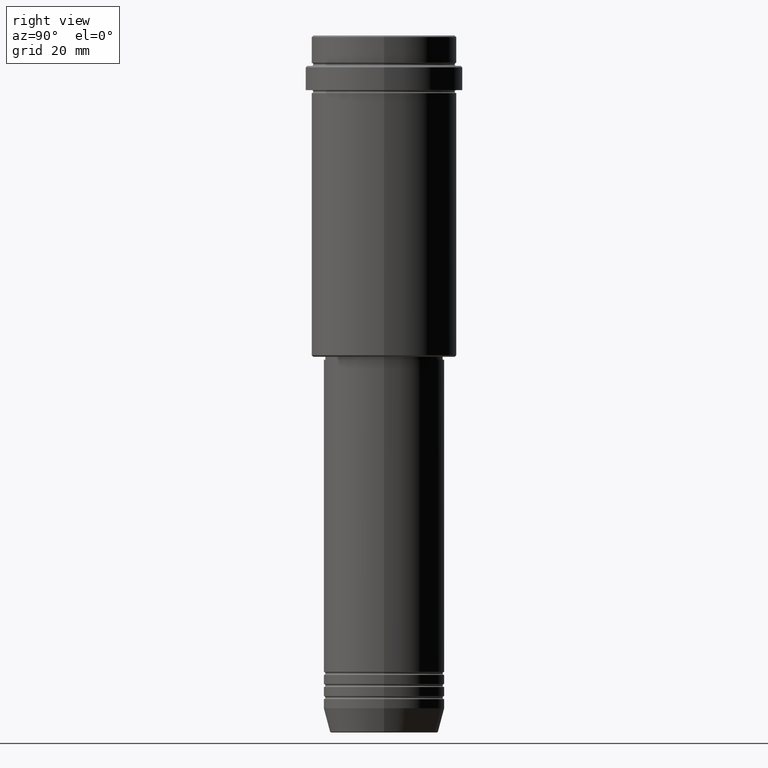
[diagram: clean part render]
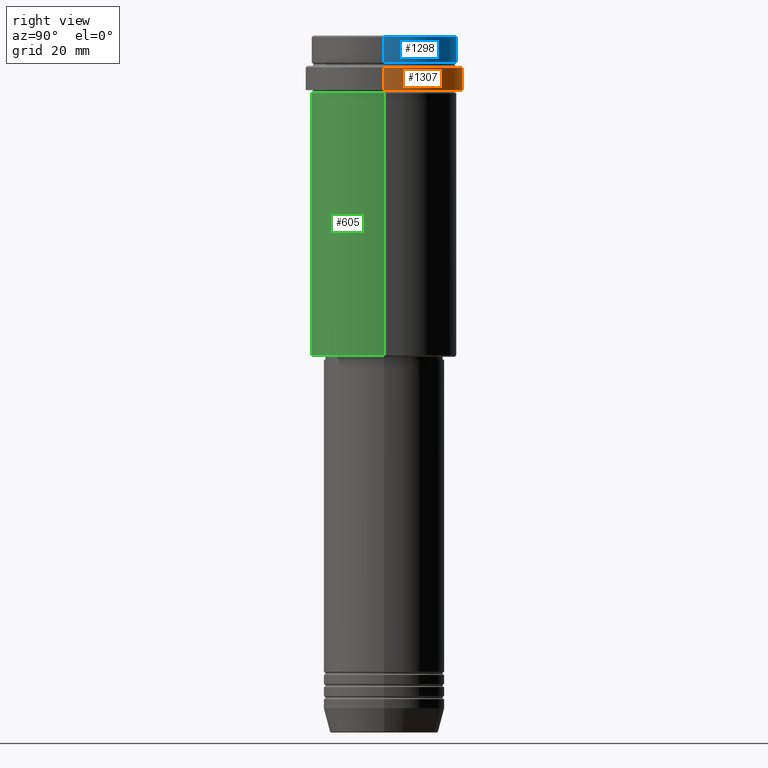
[diagram: same view with three faces highlighted in distinct colors, each labeled with its STEP entity id]
A machine part, right view with three faces highlighted in distinct colors.
Their STEP definitions:

[orange] entity #1307 — the highlighted cylindrical surface (partial cylindrical patch) has radius 26 mm, axis along (-0, -0, 1).
#30 = LINE ( 'NONE', #1130, #524 ) ;
#57 = ORIENTED_EDGE ( 'NONE', *, *, #1081, .T. ) ;
#73 = EDGE_CURVE ( 'NONE', #581, #1011, #30, .T. ) ;
#88 = EDGE_CURVE ( 'NONE', #1268, #1011, #802, .T. ) ;
#89 = DIRECTION ( 'NONE',  ( -0.000000000000000000, -0.000000000000000000, 1.000000000000000000 ) ) ;
#115 = CARTESIAN_POINT ( 'NONE',  ( -25.99999999999997158, 3.184081677783114641E-15, -10.49999999999999467 ) ) ;
#120 = DIRECTION ( 'NONE',  ( -0.000000000000000000, -0.000000000000000000, 1.000000000000000000 ) ) ;
#121 = AXIS2_PLACEMENT_3D ( 'NONE', #1397, #89, #933 ) ;
#139 = CARTESIAN_POINT ( 'NONE',  ( 0.000000000000000000, 0.000000000000000000, -10.49999999999999467 ) ) ;
#141 = EDGE_CURVE ( 'NONE', #581, #301, #1273, .T. ) ;
#203 = ORIENTED_EDGE ( 'NONE', *, *, #73, .F. ) ;
#212 = VECTOR ( 'NONE', #679, 1000.000000000000000 ) ;
#254 = DIRECTION ( 'NONE',  ( -0.000000000000000000, -0.000000000000000000, 1.000000000000000000 ) ) ;
#265 = DIRECTION ( 'NONE',  ( 1.000000000000000000, 0.000000000000000000, 0.000000000000000000 ) ) ;
#301 = VERTEX_POINT ( 'NONE', #863 ) ;
#337 = CARTESIAN_POINT ( 'NONE',  ( 0.000000000000000000, 0.000000000000000000, 0.000000000000000000 ) ) ;
#472 = ORIENTED_EDGE ( 'NONE', *, *, #141, .T. ) ;
#524 = VECTOR ( 'NONE', #254, 1000.000000000000000 ) ;
#577 = DIRECTION ( 'NONE',  ( 0.000000000000000000, 0.000000000000000000, -1.000000000000000000 ) ) ;
#581 = VERTEX_POINT ( 'NONE', #1219 ) ;
#679 = DIRECTION ( 'NONE',  ( -0.000000000000000000, -0.000000000000000000, 1.000000000000000000 ) ) ;
#802 = CIRCLE ( 'NONE', #1134, 25.99999999999997158 ) ;
#863 = CARTESIAN_POINT ( 'NONE',  ( -25.99999999999997158, 3.184081677783114641E-15, -18.00000000000000355 ) ) ;
#875 = DIRECTION ( 'NONE',  ( 1.000000000000000000, 0.000000000000000000, 0.000000000000000000 ) ) ;
#894 = LINE ( 'NONE', #1339, #212 ) ;
#933 = DIRECTION ( 'NONE',  ( 1.000000000000000000, 0.000000000000000000, 0.000000000000000000 ) ) ;
#978 = CYLINDRICAL_SURFACE ( 'NONE', #1413, 25.99999999999997158 ) ;
#985 = FACE_OUTER_BOUND ( 'NONE', #1321, .T. ) ;
#1011 = VERTEX_POINT ( 'NONE', #1367 ) ;
#1081 = EDGE_CURVE ( 'NONE', #301, #1268, #894, .T. ) ;
#1130 = CARTESIAN_POINT ( 'NONE',  ( 25.99999999999997158, 0.000000000000000000, 0.000000000000000000 ) ) ;
#1134 = AXIS2_PLACEMENT_3D ( 'NONE', #139, #577, #265 ) ;
#1219 = CARTESIAN_POINT ( 'NONE',  ( 25.99999999999997158, 0.000000000000000000, -18.00000000000000355 ) ) ;
#1222 = ORIENTED_EDGE ( 'NONE', *, *, #88, .T. ) ;
#1268 = VERTEX_POINT ( 'NONE', #115 ) ;
#1273 = CIRCLE ( 'NONE', #121, 25.99999999999997158 ) ;
#1307 = ADVANCED_FACE ( 'NONE', ( #985 ), #978, .T. ) ;
#1321 = EDGE_LOOP ( 'NONE', ( #472, #57, #1222, #203 ) ) ;
#1339 = CARTESIAN_POINT ( 'NONE',  ( -25.99999999999997158, 3.184081677783114641E-15, 0.000000000000000000 ) ) ;
#1367 = CARTESIAN_POINT ( 'NONE',  ( 25.99999999999997158, 0.000000000000000000, -10.49999999999999467 ) ) ;
#1397 = CARTESIAN_POINT ( 'NONE',  ( 0.000000000000000000, 0.000000000000000000, -18.00000000000000355 ) ) ;
#1413 = AXIS2_PLACEMENT_3D ( 'NONE', #337, #120, #875 ) ;

[blue] entity #1298 — the highlighted cylindrical surface (partial cylindrical patch) has radius 24 mm, axis along (-0, -0, 1).
#1 = CARTESIAN_POINT ( 'NONE',  ( -23.99999999999998579, 2.939152317953646317E-15, -0.4999999999999657496 ) ) ;
#10 = VERTEX_POINT ( 'NONE', #475 ) ;
#16 = LINE ( 'NONE', #660, #1393 ) ;
#60 = CARTESIAN_POINT ( 'NONE',  ( 23.99999999999997158, 0.000000000000000000, -8.999999999999998224 ) ) ;
#78 = VERTEX_POINT ( 'NONE', #60 ) ;
#80 = VERTEX_POINT ( 'NONE', #482 ) ;
#92 = EDGE_LOOP ( 'NONE', ( #1241, #224, #412, #477 ) ) ;
#98 = DIRECTION ( 'NONE',  ( -0.000000000000000000, -0.000000000000000000, 1.000000000000000000 ) ) ;
#107 = CYLINDRICAL_SURFACE ( 'NONE', #1376, 23.99999999999998579 ) ;
#114 = DIRECTION ( 'NONE',  ( -0.000000000000000000, -0.000000000000000000, 1.000000000000000000 ) ) ;
#158 = CARTESIAN_POINT ( 'NONE',  ( 0.000000000000000000, 0.000000000000000000, -0.4999999999999657496 ) ) ;
#217 = CARTESIAN_POINT ( 'NONE',  ( -23.99999999999998579, 2.939152317953646317E-15, 0.000000000000000000 ) ) ;
#224 = ORIENTED_EDGE ( 'NONE', *, *, #1144, .T. ) ;
#257 = DIRECTION ( 'NONE',  ( 1.000000000000000000, 0.000000000000000000, 0.000000000000000000 ) ) ;
#298 = AXIS2_PLACEMENT_3D ( 'NONE', #158, #800, #257 ) ;
#328 = VECTOR ( 'NONE', #114, 1000.000000000000000 ) ;
#412 = ORIENTED_EDGE ( 'NONE', *, *, #730, .T. ) ;
#434 = FACE_OUTER_BOUND ( 'NONE', #92, .T. ) ;
#475 = CARTESIAN_POINT ( 'NONE',  ( 23.99999999999998579, 0.000000000000000000, -0.4999999999999657496 ) ) ;
#477 = ORIENTED_EDGE ( 'NONE', *, *, #1274, .F. ) ;
#482 = CARTESIAN_POINT ( 'NONE',  ( -23.99999999999997158, 2.939152317953645133E-15, -8.999999999999998224 ) ) ;
#536 = DIRECTION ( 'NONE',  ( -0.000000000000000000, -0.000000000000000000, 1.000000000000000000 ) ) ;
#625 = DIRECTION ( 'NONE',  ( -0.000000000000000000, -0.000000000000000000, 1.000000000000000000 ) ) ;
#660 = CARTESIAN_POINT ( 'NONE',  ( 23.99999999999998579, 0.000000000000000000, 0.000000000000000000 ) ) ;
#716 = CIRCLE ( 'NONE', #298, 23.99999999999998579 ) ;
#730 = EDGE_CURVE ( 'NONE', #1327, #10, #716, .T. ) ;
#783 = AXIS2_PLACEMENT_3D ( 'NONE', #1052, #625, #1383 ) ;
#800 = DIRECTION ( 'NONE',  ( 0.000000000000000000, 0.000000000000000000, -1.000000000000000000 ) ) ;
#992 = CARTESIAN_POINT ( 'NONE',  ( 0.000000000000000000, 0.000000000000000000, 0.000000000000000000 ) ) ;
#1052 = CARTESIAN_POINT ( 'NONE',  ( 0.000000000000000000, 0.000000000000000000, -8.999999999999998224 ) ) ;
#1113 = CIRCLE ( 'NONE', #783, 23.99999999999997158 ) ;
#1144 = EDGE_CURVE ( 'NONE', #80, #1327, #1210, .T. ) ;
#1160 = EDGE_CURVE ( 'NONE', #78, #80, #1113, .T. ) ;
#1210 = LINE ( 'NONE', #217, #328 ) ;
#1241 = ORIENTED_EDGE ( 'NONE', *, *, #1160, .T. ) ;
#1274 = EDGE_CURVE ( 'NONE', #78, #10, #16, .T. ) ;
#1298 = ADVANCED_FACE ( 'NONE', ( #434 ), #107, .T. ) ;
#1327 = VERTEX_POINT ( 'NONE', #1 ) ;
#1376 = AXIS2_PLACEMENT_3D ( 'NONE', #992, #98, #1408 ) ;
#1383 = DIRECTION ( 'NONE',  ( 1.000000000000000000, 0.000000000000000000, 0.000000000000000000 ) ) ;
#1393 = VECTOR ( 'NONE', #536, 1000.000000000000000 ) ;
#1408 = DIRECTION ( 'NONE',  ( 1.000000000000000000, 0.000000000000000000, 0.000000000000000000 ) ) ;

[green] entity #605 — the highlighted cylindrical surface (partial cylindrical patch) has radius 24 mm, axis along (-0, -0, 1).
#24 = DIRECTION ( 'NONE',  ( -0.000000000000000000, -0.000000000000000000, 1.000000000000000000 ) ) ;
#179 = VERTEX_POINT ( 'NONE', #409 ) ;
#213 = AXIS2_PLACEMENT_3D ( 'NONE', #850, #1308, #312 ) ;
#214 = VERTEX_POINT ( 'NONE', #1067 ) ;
#290 = EDGE_CURVE ( 'NONE', #214, #179, #395, .T. ) ;
#310 = DIRECTION ( 'NONE',  ( 1.000000000000000000, 0.000000000000000000, 0.000000000000000000 ) ) ;
#312 = DIRECTION ( 'NONE',  ( -1.000000000000000000, 0.000000000000000000, 0.000000000000000000 ) ) ;
#316 = FACE_OUTER_BOUND ( 'NONE', #407, .T. ) ;
#321 = CARTESIAN_POINT ( 'NONE',  ( 23.99999999999998579, 0.000000000000000000, -105.5000000000000284 ) ) ;
#331 = LINE ( 'NONE', #1216, #1351 ) ;
#383 = EDGE_CURVE ( 'NONE', #1328, #179, #801, .T. ) ;
#395 = CIRCLE ( 'NONE', #779, 23.99999999999997158 ) ;
#407 = EDGE_LOOP ( 'NONE', ( #1357, #1064, #628, #1071 ) ) ;
#409 = CARTESIAN_POINT ( 'NONE',  ( 23.99999999999997158, 0.000000000000000000, -19.00000000000000711 ) ) ;
#452 = DIRECTION ( 'NONE',  ( -0.000000000000000000, -0.000000000000000000, 1.000000000000000000 ) ) ;
#554 = AXIS2_PLACEMENT_3D ( 'NONE', #1198, #24, #889 ) ;
#605 = ADVANCED_FACE ( 'NONE', ( #316 ), #997, .T. ) ;
#628 = ORIENTED_EDGE ( 'NONE', *, *, #383, .T. ) ;
#779 = AXIS2_PLACEMENT_3D ( 'NONE', #1111, #452, #310 ) ;
#801 = LINE ( 'NONE', #921, #1390 ) ;
#850 = CARTESIAN_POINT ( 'NONE',  ( 0.000000000000000000, 0.000000000000000000, -105.5000000000000284 ) ) ;
#878 = CIRCLE ( 'NONE', #213, 23.99999999999998579 ) ;
#889 = DIRECTION ( 'NONE',  ( 1.000000000000000000, 0.000000000000000000, 0.000000000000000000 ) ) ;
#921 = CARTESIAN_POINT ( 'NONE',  ( 23.99999999999998579, 0.000000000000000000, 0.000000000000000000 ) ) ;
#997 = CYLINDRICAL_SURFACE ( 'NONE', #554, 23.99999999999998579 ) ;
#1064 = ORIENTED_EDGE ( 'NONE', *, *, #1346, .T. ) ;
#1067 = CARTESIAN_POINT ( 'NONE',  ( -23.99999999999997158, 2.939152317953645133E-15, -19.00000000000000711 ) ) ;
#1071 = ORIENTED_EDGE ( 'NONE', *, *, #290, .F. ) ;
#1111 = CARTESIAN_POINT ( 'NONE',  ( 0.000000000000000000, 0.000000000000000000, -19.00000000000000711 ) ) ;
#1194 = CARTESIAN_POINT ( 'NONE',  ( -23.99999999999998579, 2.939152317953646317E-15, -105.5000000000000284 ) ) ;
#1198 = CARTESIAN_POINT ( 'NONE',  ( 0.000000000000000000, 0.000000000000000000, 0.000000000000000000 ) ) ;
#1216 = CARTESIAN_POINT ( 'NONE',  ( -23.99999999999998579, 2.939152317953646317E-15, 0.000000000000000000 ) ) ;
#1221 = DIRECTION ( 'NONE',  ( -0.000000000000000000, -0.000000000000000000, 1.000000000000000000 ) ) ;
#1264 = VERTEX_POINT ( 'NONE', #1194 ) ;
#1308 = DIRECTION ( 'NONE',  ( -0.000000000000000000, -0.000000000000000000, 1.000000000000000000 ) ) ;
#1328 = VERTEX_POINT ( 'NONE', #321 ) ;
#1346 = EDGE_CURVE ( 'NONE', #1264, #1328, #878, .T. ) ;
#1351 = VECTOR ( 'NONE', #1221, 1000.000000000000000 ) ;
#1357 = ORIENTED_EDGE ( 'NONE', *, *, #1377, .F. ) ;
#1358 = DIRECTION ( 'NONE',  ( -0.000000000000000000, -0.000000000000000000, 1.000000000000000000 ) ) ;
#1377 = EDGE_CURVE ( 'NONE', #1264, #214, #331, .T. ) ;
#1390 = VECTOR ( 'NONE', #1358, 1000.000000000000000 ) ;